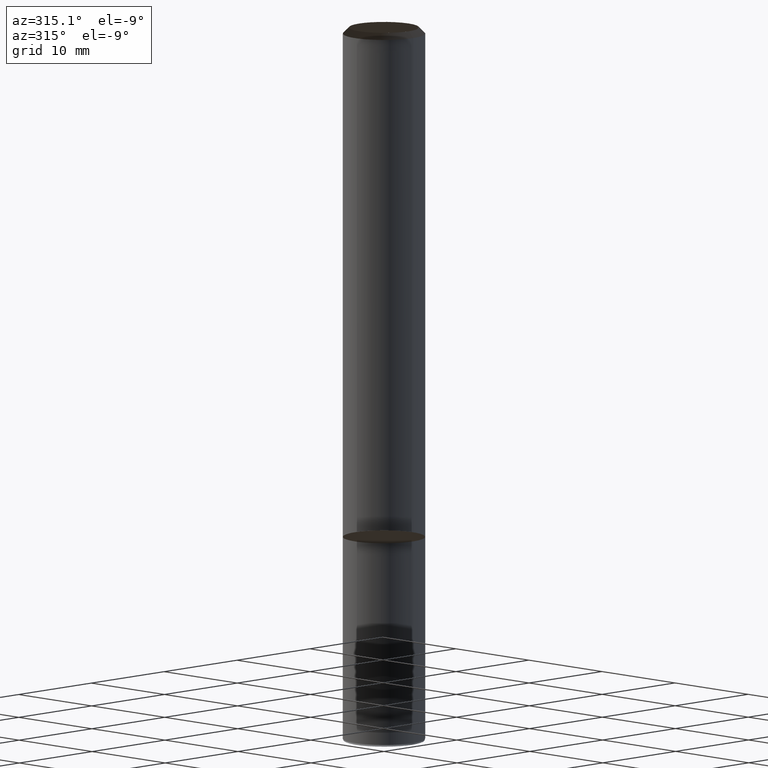
[diagram: clean part render]
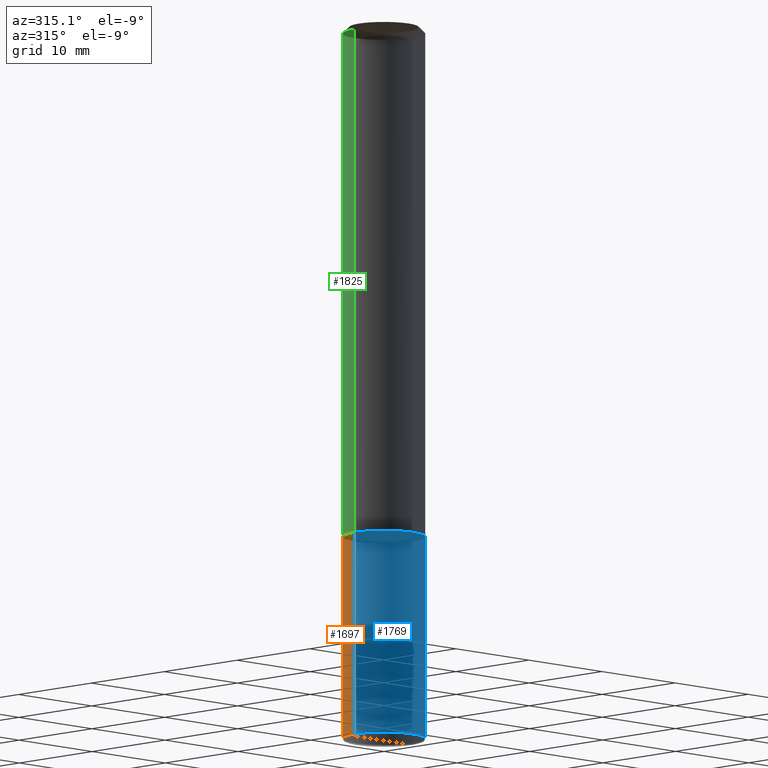
[diagram: same view with three faces highlighted in distinct colors, each labeled with its STEP entity id]
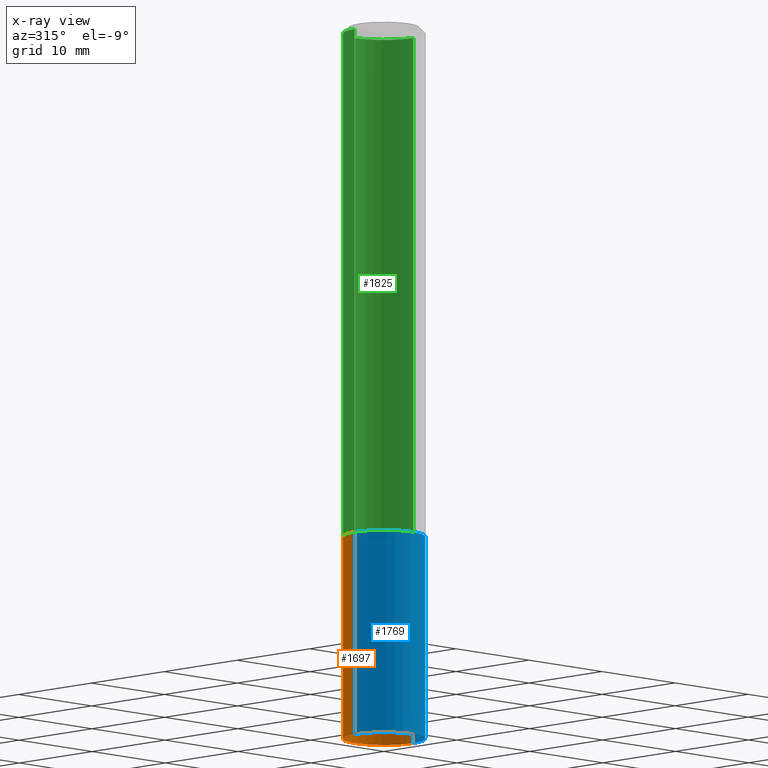
[diagram: x-ray of the same camera — body ghosted, the three highlighted faces saturated]
A machine part, auxiliary view with three faces highlighted in distinct colors.
The next image is the same camera in x-ray (body ghosted, the three faces saturated) — at least one of them is partly hidden behind the body in this view.
Their STEP definitions:

[orange] entity #1697 — the highlighted face is a freeform B-spline surface patch.
#1587=CARTESIAN_POINT('',(4.0,0.0,-19.8));
#1588=CARTESIAN_POINT('',(4.0,4.0,-19.8));
#1589=CARTESIAN_POINT('',(0.0,4.0,-19.8));
#1590=CARTESIAN_POINT('',(-4.0,4.0,-19.8));
#1591=CARTESIAN_POINT('',(-4.0,0.0,-19.8));
#1592=CARTESIAN_POINT('',(4.0,0.0,0.0));
#1593=CARTESIAN_POINT('',(4.0,4.0,0.0));
#1594=CARTESIAN_POINT('',(0.0,4.0,0.0));
#1595=CARTESIAN_POINT('',(-4.0,4.0,0.0));
#1596=CARTESIAN_POINT('',(-4.0,0.0,0.0));
#1678=(
BOUNDED_SURFACE()
B_SPLINE_SURFACE(1,2,(
(#1587,#1588,#1589,#1590,#1591),
(#1592,#1593,#1594,#1595,#1596)
), .UNSPECIFIED.,.F.,.F.,.F.)
B_SPLINE_SURFACE_WITH_KNOTS((2,2),(3,2,3),(
0.0,1.0),(
0.0,0.5,1.0), .UNSPECIFIED.)
GEOMETRIC_REPRESENTATION_ITEM()
RATIONAL_B_SPLINE_SURFACE(((1.0,0.707106781187,1.0,0.707106781187,1.0),
(1.0,0.707106781187,1.0,0.707106781187,1.0)
))
REPRESENTATION_ITEM('')
SURFACE()
);
#1679=(
BOUNDED_CURVE()
B_SPLINE_CURVE(2,(#1592,#1593,#1594,#1595,#1596),.UNSPECIFIED.,.F.,.F.)
B_SPLINE_CURVE_WITH_KNOTS((3,2,3),
(0.0,0.5,1.0),.UNSPECIFIED.)
CURVE()
GEOMETRIC_REPRESENTATION_ITEM()
RATIONAL_B_SPLINE_CURVE((1.0,0.707106781187,1.0,0.707106781187,1.0))
REPRESENTATION_ITEM('')
);
#1680=(
BOUNDED_CURVE()
B_SPLINE_CURVE(1,(#1596,#1591),.UNSPECIFIED.,.F.,.F.)
B_SPLINE_CURVE_WITH_KNOTS((2,2),
(0.0,1.0),.UNSPECIFIED.)
CURVE()
GEOMETRIC_REPRESENTATION_ITEM()
RATIONAL_B_SPLINE_CURVE((1.0,1.0))
REPRESENTATION_ITEM('')
);
#1681=(
BOUNDED_CURVE()
B_SPLINE_CURVE(2,(#1591,#1590,#1589,#1588,#1587),.UNSPECIFIED.,.F.,.F.)
B_SPLINE_CURVE_WITH_KNOTS((3,2,3),
(0.0,0.5,1.0),.UNSPECIFIED.)
CURVE()
GEOMETRIC_REPRESENTATION_ITEM()
RATIONAL_B_SPLINE_CURVE((1.0,0.707106781187,1.0,0.707106781187,1.0))
REPRESENTATION_ITEM('')
);
#1682=(
BOUNDED_CURVE()
B_SPLINE_CURVE(1,(#1587,#1592),.UNSPECIFIED.,.F.,.F.)
B_SPLINE_CURVE_WITH_KNOTS((2,2),
(0.0,1.0),.UNSPECIFIED.)
CURVE()
GEOMETRIC_REPRESENTATION_ITEM()
RATIONAL_B_SPLINE_CURVE((1.0,1.0))
REPRESENTATION_ITEM('')
);
#1683=VERTEX_POINT('',#1587);
#1684=VERTEX_POINT('',#1591);
#1685=VERTEX_POINT('',#1592);
#1686=VERTEX_POINT('',#1596);
#1687=EDGE_CURVE('',#1685,#1686,#1679,.T.);
#1688=EDGE_CURVE('',#1686,#1684,#1680,.T.);
#1689=EDGE_CURVE('',#1684,#1683,#1681,.T.);
#1690=EDGE_CURVE('',#1683,#1685,#1682,.T.);
#1691=ORIENTED_EDGE('',*,*,#1687,.T.);
#1692=ORIENTED_EDGE('',*,*,#1688,.T.);
#1693=ORIENTED_EDGE('',*,*,#1689,.T.);
#1694=ORIENTED_EDGE('',*,*,#1690,.T.);
#1695=EDGE_LOOP('',(#1691,#1692,#1693,#1694));
#1696=FACE_OUTER_BOUND('',#1695,.T.);
#1697=ADVANCED_FACE('',(#1696),#1678,.T.);

[blue] entity #1769 — the highlighted face is a freeform B-spline surface patch.
#1587=CARTESIAN_POINT('',(4.0,0.0,-19.8));
#1591=CARTESIAN_POINT('',(-4.0,0.0,-19.8));
#1592=CARTESIAN_POINT('',(4.0,0.0,0.0));
#1596=CARTESIAN_POINT('',(-4.0,0.0,0.0));
#1610=CARTESIAN_POINT('',(-4.0,-4.0,-19.8));
#1611=CARTESIAN_POINT('',(0.0,-4.0,-19.8));
#1612=CARTESIAN_POINT('',(4.0,-4.0,-19.8));
#1613=CARTESIAN_POINT('',(-4.0,-4.0,0.0));
#1614=CARTESIAN_POINT('',(0.0,-4.0,0.0));
#1615=CARTESIAN_POINT('',(4.0,-4.0,0.0));
#1750=(
BOUNDED_SURFACE()
B_SPLINE_SURFACE(1,2,(
(#1591,#1610,#1611,#1612,#1587),
(#1596,#1613,#1614,#1615,#1592)
), .UNSPECIFIED.,.F.,.F.,.F.)
B_SPLINE_SURFACE_WITH_KNOTS((2,2),(3,2,3),(
0.0,1.0),(
0.0,0.5,1.0), .UNSPECIFIED.)
GEOMETRIC_REPRESENTATION_ITEM()
RATIONAL_B_SPLINE_SURFACE(((1.0,0.707106781187,1.0,0.707106781187,1.0),
(1.0,0.707106781187,1.0,0.707106781187,1.0)
))
REPRESENTATION_ITEM('')
SURFACE()
);
#1751=(
BOUNDED_CURVE()
B_SPLINE_CURVE(1,(#1596,#1591),.UNSPECIFIED.,.F.,.F.)
B_SPLINE_CURVE_WITH_KNOTS((2,2),
(0.0,1.0),.UNSPECIFIED.)
CURVE()
GEOMETRIC_REPRESENTATION_ITEM()
RATIONAL_B_SPLINE_CURVE((1.0,1.0))
REPRESENTATION_ITEM('')
);
#1752=(
BOUNDED_CURVE()
B_SPLINE_CURVE(2,(#1591,#1610,#1611,#1612,#1587),.UNSPECIFIED.,.F.,.F.)
B_SPLINE_CURVE_WITH_KNOTS((3,2,3),
(0.0,0.5,1.0),.UNSPECIFIED.)
CURVE()
GEOMETRIC_REPRESENTATION_ITEM()
RATIONAL_B_SPLINE_CURVE((1.0,0.707106781187,1.0,0.707106781187,1.0))
REPRESENTATION_ITEM('')
);
#1753=(
BOUNDED_CURVE()
B_SPLINE_CURVE(1,(#1587,#1592),.UNSPECIFIED.,.F.,.F.)
B_SPLINE_CURVE_WITH_KNOTS((2,2),
(0.0,1.0),.UNSPECIFIED.)
CURVE()
GEOMETRIC_REPRESENTATION_ITEM()
RATIONAL_B_SPLINE_CURVE((1.0,1.0))
REPRESENTATION_ITEM('')
);
#1754=(
BOUNDED_CURVE()
B_SPLINE_CURVE(2,(#1592,#1615,#1614,#1613,#1596),.UNSPECIFIED.,.F.,.F.)
B_SPLINE_CURVE_WITH_KNOTS((3,2,3),
(0.0,0.5,1.0),.UNSPECIFIED.)
CURVE()
GEOMETRIC_REPRESENTATION_ITEM()
RATIONAL_B_SPLINE_CURVE((1.0,0.707106781187,1.0,0.707106781187,1.0))
REPRESENTATION_ITEM('')
);
#1755=VERTEX_POINT('',#1587);
#1756=VERTEX_POINT('',#1591);
#1757=VERTEX_POINT('',#1592);
#1758=VERTEX_POINT('',#1596);
#1759=EDGE_CURVE('',#1758,#1756,#1751,.T.);
#1760=EDGE_CURVE('',#1756,#1755,#1752,.T.);
#1761=EDGE_CURVE('',#1755,#1757,#1753,.T.);
#1762=EDGE_CURVE('',#1757,#1758,#1754,.T.);
#1763=ORIENTED_EDGE('',*,*,#1759,.T.);
#1764=ORIENTED_EDGE('',*,*,#1760,.T.);
#1765=ORIENTED_EDGE('',*,*,#1761,.T.);
#1766=ORIENTED_EDGE('',*,*,#1762,.T.);
#1767=EDGE_LOOP('',(#1763,#1764,#1765,#1766));
#1768=FACE_OUTER_BOUND('',#1767,.T.);
#1769=ADVANCED_FACE('',(#1768),#1750,.T.);

[green] entity #1825 — the highlighted face is a freeform B-spline surface patch.
#1592=CARTESIAN_POINT('',(4.0,0.0,0.0));
#1593=CARTESIAN_POINT('',(4.0,4.0,0.0));
#1594=CARTESIAN_POINT('',(0.0,4.0,0.0));
#1595=CARTESIAN_POINT('',(-4.0,4.0,0.0));
#1596=CARTESIAN_POINT('',(-4.0,0.0,0.0));
#1616=CARTESIAN_POINT('',(4.0,0.0,49.4));
#1617=CARTESIAN_POINT('',(4.0,4.0,49.4));
#1618=CARTESIAN_POINT('',(0.0,4.0,49.4));
#1619=CARTESIAN_POINT('',(-4.0,4.0,49.4));
#1620=CARTESIAN_POINT('',(-4.0,0.0,49.4));
#1806=(
BOUNDED_SURFACE()
B_SPLINE_SURFACE(1,2,(
(#1592,#1593,#1594,#1595,#1596),
(#1616,#1617,#1618,#1619,#1620)
), .UNSPECIFIED.,.F.,.F.,.F.)
B_SPLINE_SURFACE_WITH_KNOTS((2,2),(3,2,3),(
0.0,1.0),(
0.0,0.5,1.0), .UNSPECIFIED.)
GEOMETRIC_REPRESENTATION_ITEM()
RATIONAL_B_SPLINE_SURFACE(((1.0,0.707106781187,1.0,0.707106781187,1.0),
(1.0,0.707106781187,1.0,0.707106781187,1.0)
))
REPRESENTATION_ITEM('')
SURFACE()
);
#1807=(
BOUNDED_CURVE()
B_SPLINE_CURVE(2,(#1616,#1617,#1618,#1619,#1620),.UNSPECIFIED.,.F.,.F.)
B_SPLINE_CURVE_WITH_KNOTS((3,2,3),
(0.0,0.5,1.0),.UNSPECIFIED.)
CURVE()
GEOMETRIC_REPRESENTATION_ITEM()
RATIONAL_B_SPLINE_CURVE((1.0,0.707106781187,1.0,0.707106781187,1.0))
REPRESENTATION_ITEM('')
);
#1808=(
BOUNDED_CURVE()
B_SPLINE_CURVE(1,(#1620,#1596),.UNSPECIFIED.,.F.,.F.)
B_SPLINE_CURVE_WITH_KNOTS((2,2),
(0.0,1.0),.UNSPECIFIED.)
CURVE()
GEOMETRIC_REPRESENTATION_ITEM()
RATIONAL_B_SPLINE_CURVE((1.0,1.0))
REPRESENTATION_ITEM('')
);
#1809=(
BOUNDED_CURVE()
B_SPLINE_CURVE(2,(#1596,#1595,#1594,#1593,#1592),.UNSPECIFIED.,.F.,.F.)
B_SPLINE_CURVE_WITH_KNOTS((3,2,3),
(0.0,0.5,1.0),.UNSPECIFIED.)
CURVE()
GEOMETRIC_REPRESENTATION_ITEM()
RATIONAL_B_SPLINE_CURVE((1.0,0.707106781187,1.0,0.707106781187,1.0))
REPRESENTATION_ITEM('')
);
#1810=(
BOUNDED_CURVE()
B_SPLINE_CURVE(1,(#1592,#1616),.UNSPECIFIED.,.F.,.F.)
B_SPLINE_CURVE_WITH_KNOTS((2,2),
(0.0,1.0),.UNSPECIFIED.)
CURVE()
GEOMETRIC_REPRESENTATION_ITEM()
RATIONAL_B_SPLINE_CURVE((1.0,1.0))
REPRESENTATION_ITEM('')
);
#1811=VERTEX_POINT('',#1592);
#1812=VERTEX_POINT('',#1596);
#1813=VERTEX_POINT('',#1616);
#1814=VERTEX_POINT('',#1620);
#1815=EDGE_CURVE('',#1813,#1814,#1807,.T.);
#1816=EDGE_CURVE('',#1814,#1812,#1808,.T.);
#1817=EDGE_CURVE('',#1812,#1811,#1809,.T.);
#1818=EDGE_CURVE('',#1811,#1813,#1810,.T.);
#1819=ORIENTED_EDGE('',*,*,#1815,.T.);
#1820=ORIENTED_EDGE('',*,*,#1816,.T.);
#1821=ORIENTED_EDGE('',*,*,#1817,.T.);
#1822=ORIENTED_EDGE('',*,*,#1818,.T.);
#1823=EDGE_LOOP('',(#1819,#1820,#1821,#1822));
#1824=FACE_OUTER_BOUND('',#1823,.T.);
#1825=ADVANCED_FACE('',(#1824),#1806,.T.);